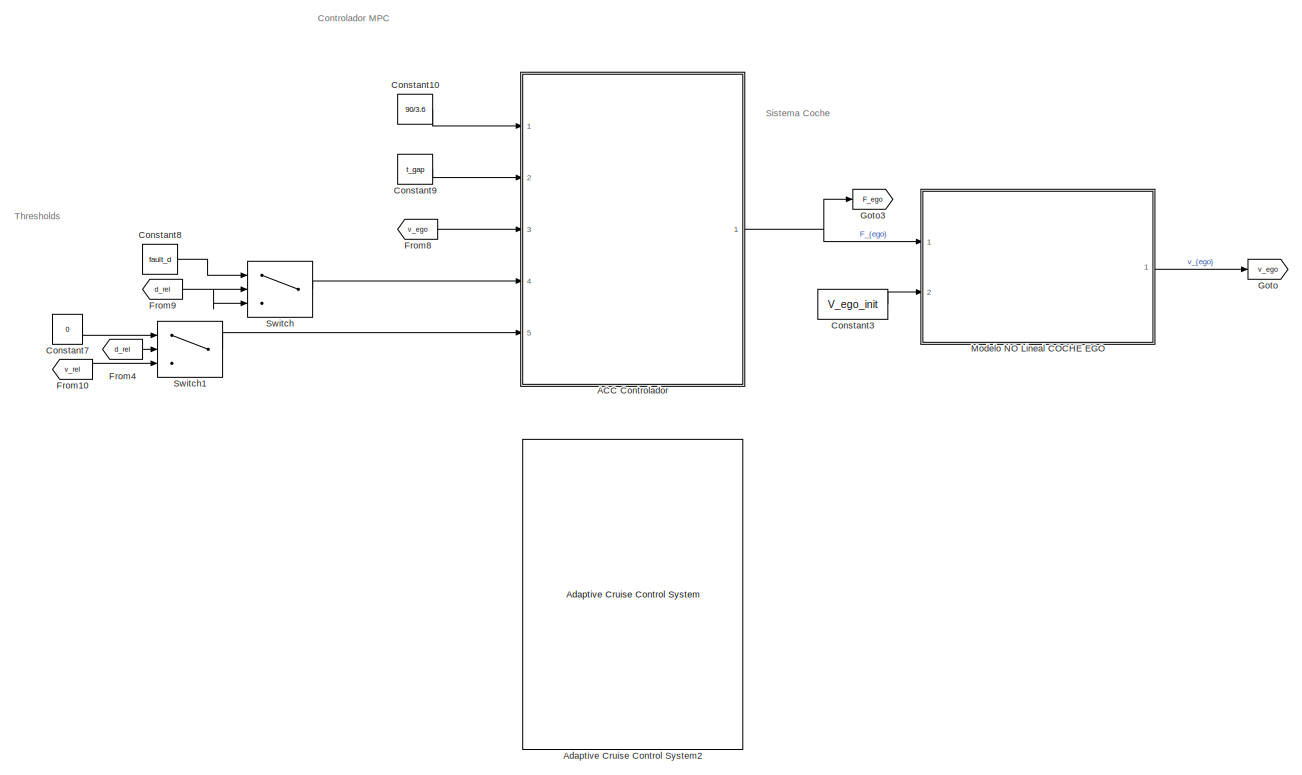
[diagram: root canvas - part 1/2, right side, full height]
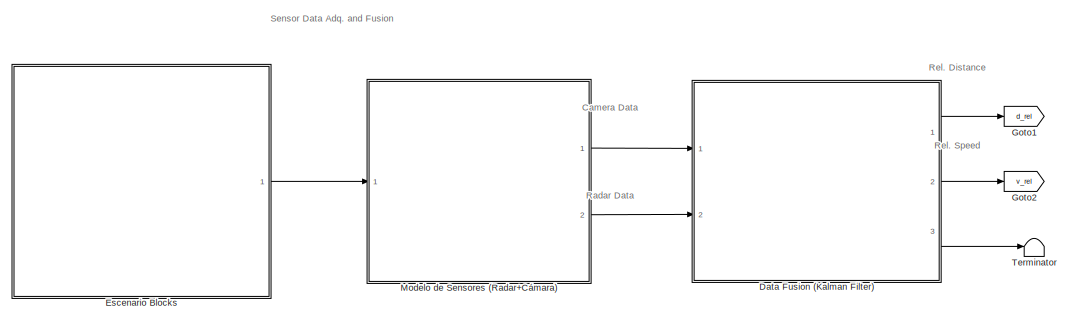
[diagram: root canvas - part 2/2, middle left region]
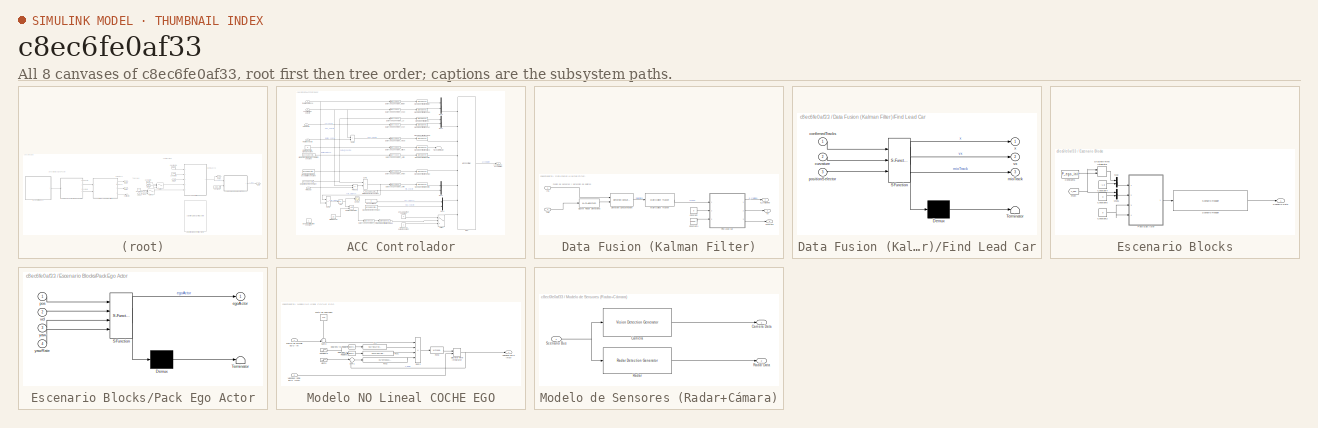
[diagram: thumbnail index - all 8 canvases of the model, root first then tree order]
MODEL slx_c8ec6fe0af33
KIND model
CONFIG AbsTol = auto
CONFIG EnableMultiTasking = off
CONFIG FixedStep = auto
CONFIG MaxStep = auto
CONFIG MinStep = auto
CONFIG RelTol = 1e-3
CONFIG SampleTimeConstraint = Unconstrained
CONFIG Solver = FixedStepDiscrete
CONFIG SolverName = FixedStepDiscrete
CONFIG StartTime = 0.0
CONFIG StopTime = 45
WORKSPACE source: mxarray member
WORKSPACE firstWarning = 1
WORKSPACE originalScenarioChecksum = '158070AB835E3E5B039703679FDCB6FF'
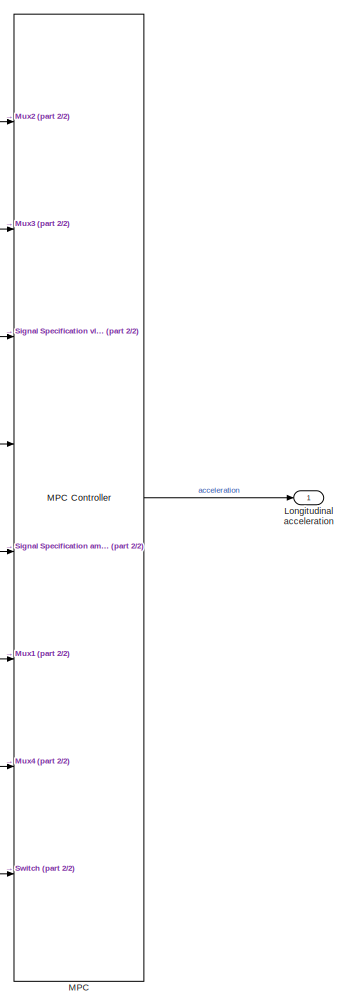
[diagram: ACC Controlador - part 1/2, right side, full height]
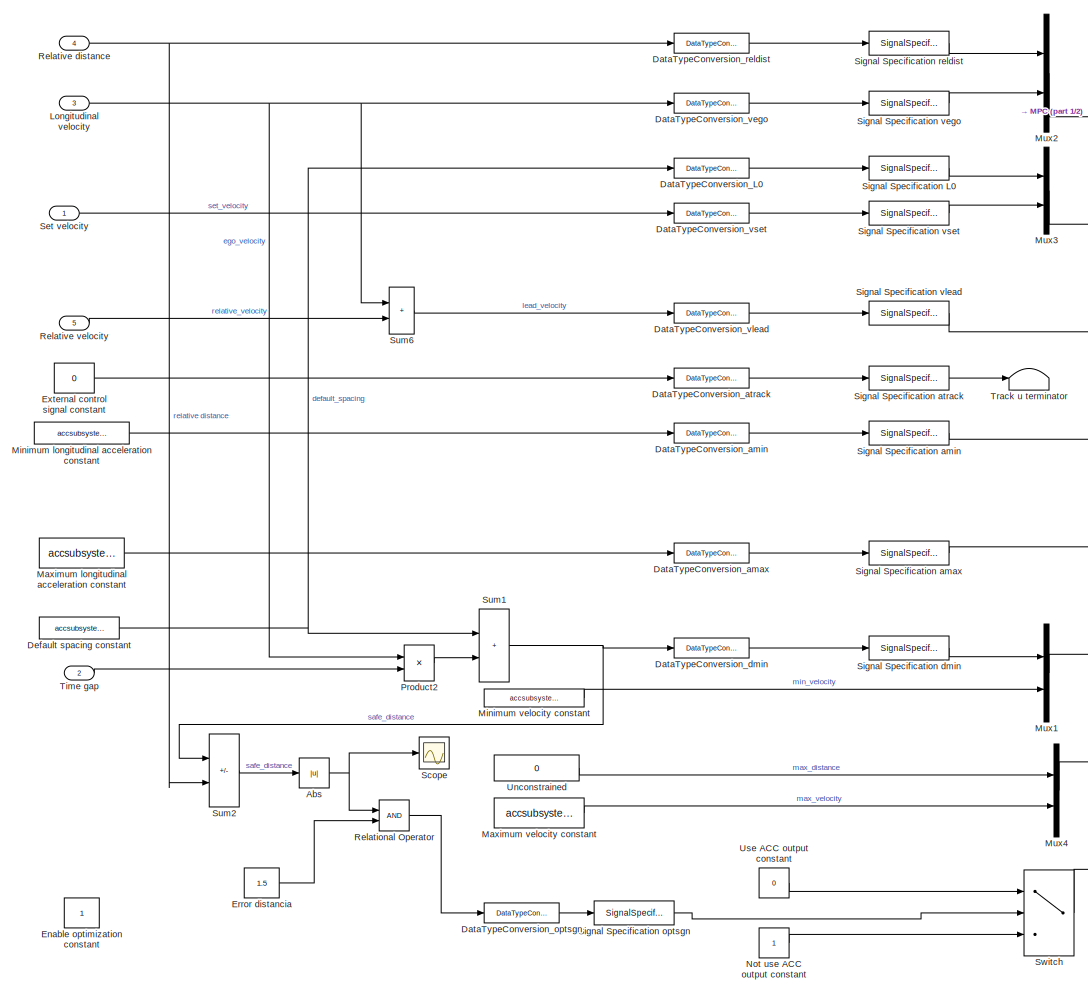
[diagram: ACC Controlador - part 2/2, center side, full height]
BLOCK [SubSystem] ACC Controlador
  Ports = [5, 1]
  RequestExecContextInheritance = off
BLOCK [Abs] ACC Controlador/Abs
  SaturateOnIntegerOverflow = off
BLOCK [DataTypeConversion] ACC Controlador/DataTypeConversion_L0
  OutDataTypeStr = accsubsystem_data.DataType
  RndMeth = Floor
  SaturateOnIntegerOverflow = off
BLOCK [DataTypeConversion] ACC Controlador/DataTypeConversion_amax
  OutDataTypeStr = accsubsystem_data.DataType
  RndMeth = Floor
  SaturateOnIntegerOverflow = off
BLOCK [DataTypeConversion] ACC Controlador/DataTypeConversion_amin
  OutDataTypeStr = accsubsystem_data.DataType
  RndMeth = Floor
  SaturateOnIntegerOverflow = off
BLOCK [DataTypeConversion] ACC Controlador/DataTypeConversion_atrack
  OutDataTypeStr = accsubsystem_data.DataType
  RndMeth = Floor
  SaturateOnIntegerOverflow = off
BLOCK [DataTypeConversion] ACC Controlador/DataTypeConversion_dmin
  OutDataTypeStr = accsubsystem_data.DataType
  RndMeth = Floor
  SaturateOnIntegerOverflow = off
BLOCK [DataTypeConversion] ACC Controlador/DataTypeConversion_optsgn
  OutDataTypeStr = accsubsystem_data.DataType
  RndMeth = Floor
  SaturateOnIntegerOverflow = off
BLOCK [DataTypeConversion] ACC Controlador/DataTypeConversion_reldist
  OutDataTypeStr = accsubsystem_data.DataType
  RndMeth = Floor
  SaturateOnIntegerOverflow = off
BLOCK [DataTypeConversion] ACC Controlador/DataTypeConversion_vego
  OutDataTypeStr = accsubsystem_data.DataType
  RndMeth = Floor
  SaturateOnIntegerOverflow = off
BLOCK [DataTypeConversion] ACC Controlador/DataTypeConversion_vlead
  OutDataTypeStr = accsubsystem_data.DataType
  RndMeth = Floor
  SaturateOnIntegerOverflow = off
BLOCK [DataTypeConversion] ACC Controlador/DataTypeConversion_vset
  OutDataTypeStr = accsubsystem_data.DataType
  RndMeth = Floor
  SaturateOnIntegerOverflow = off
BLOCK [Constant] ACC Controlador/Default spacing constant
  OutDataTypeStr = accsubsystem_data.DataType
  Value = accsubsystem_data.DefaultSpacing
BLOCK [Constant] ACC Controlador/Enable optimization constant
  OutDataTypeStr = accsubsystem_data.DataType
BLOCK [Constant] ACC Controlador/Error distancia
  OutDataTypeStr = accsubsystem_data.DataType
  Value = 1.5
BLOCK [Constant] ACC Controlador/External control signal constant
  OutDataTypeStr = accsubsystem_data.DataType
  Value = 0
BLOCK [Outport] ACC Controlador/Longitudinal acceleration
  PortDimensions = 1
  SamplingMode = Sample based
  SignalType = real
  VectorParamsAs1DForOutWhenUnconnected = off
BLOCK [Inport] ACC Controlador/Longitudinal velocity
  Port = 3
BLOCK [Reference] ACC Controlador/MPC  REF=mpclib/MPC Controller  (lib defined in mdl_ae329e0e0455)
  Ports = [8, 1]
  SCDEnableBlockLinearizationSpecification = on
  SourceBlock = mpclib/MPC Controller
  SourceProductBaseCode = MP
  SourceType = MPC
BLOCK [Constant] ACC Controlador/Maximum longitudinal acceleration constant
  OutDataTypeStr = accsubsystem_data.DataType
  Value = accsubsystem_data.MaxAcceleration
BLOCK [Constant] ACC Controlador/Maximum velocity constant
  OutDataTypeStr = accsubsystem_data.DataType
  Value = accsubsystem_data.MaxVelocity
BLOCK [Constant] ACC Controlador/Minimum longitudinal acceleration constant
  OutDataTypeStr = accsubsystem_data.DataType
  Value = accsubsystem_data.MinAcceleration
BLOCK [Constant] ACC Controlador/Minimum velocity constant
  OutDataTypeStr = accsubsystem_data.DataType
  Value = accsubsystem_data.MinVelocity
BLOCK [Mux] ACC Controlador/Mux1
  DisplayOption = bar
  Inputs = [1 1]
  Ports = [2, 1]
BLOCK [Mux] ACC Controlador/Mux2
  DisplayOption = bar
  Inputs = [1 1]
  Ports = [2, 1]
BLOCK [Mux] ACC Controlador/Mux3
  DisplayOption = bar
  Inputs = [1 1]
  Ports = [2, 1]
BLOCK [Mux] ACC Controlador/Mux4
  DisplayOption = bar
  Inputs = [1 1]
  Ports = [2, 1]
BLOCK [Constant] ACC Controlador/Not use ACC output constant
  OutDataTypeStr = accsubsystem_data.DataType
BLOCK [Product] ACC Controlador/Product2
  Ports = [2, 1]
BLOCK [RelationalOperator] ACC Controlador/Relational Operator
  InputSameDT = off
  OutDataTypeStr = boolean
  Ports = [2, 1]
  RndMeth = Simplest
BLOCK [Inport] ACC Controlador/Relative distance
  Port = 4
BLOCK [Inport] ACC Controlador/Relative velocity
  Port = 5
BLOCK [Scope] ACC Controlador/Scope
  Floating = off
  NumInputPorts = 1
  Ports = [1]
  ScopeSpecificationString = Simulink.scopes.TimeScopeBlockCfg('CurrentConfiguration', extmgr.ConfigurationSet(extmgr.Configuration('Core','General UI',true),extmgr.Configuration('Core','Source UI',true),extmgr.Configuration('Sources','WiredSimulink',true,'DataLoggingVariableName','ScopeData1'),extmgr.Configuration('Visuals','Time Domain',true,'SerializedDisplays',{struct('MinYLimReal','-3.90036','MaxYLimReal','35.13271','YLa...<+1421ch>
BLOCK [Inport] ACC Controlador/Set velocity
BLOCK [SignalSpecification] ACC Controlador/Signal Specification L0
  Dimensions = 1
BLOCK [SignalSpecification] ACC Controlador/Signal Specification amax
  Dimensions = 1
BLOCK [SignalSpecification] ACC Controlador/Signal Specification amin
  Dimensions = 1
BLOCK [SignalSpecification] ACC Controlador/Signal Specification atrack
  Dimensions = 1
BLOCK [SignalSpecification] ACC Controlador/Signal Specification dmin
  Dimensions = 1
BLOCK [SignalSpecification] ACC Controlador/Signal Specification optsgn
  Dimensions = 1
BLOCK [SignalSpecification] ACC Controlador/Signal Specification reldist
  Dimensions = 1
BLOCK [SignalSpecification] ACC Controlador/Signal Specification vego
  Dimensions = 1
BLOCK [SignalSpecification] ACC Controlador/Signal Specification vlead
  Dimensions = 1
BLOCK [SignalSpecification] ACC Controlador/Signal Specification vset
  Dimensions = 1
BLOCK [Sum] ACC Controlador/Sum1
  IconShape = rectangular
  Ports = [2, 1]
BLOCK [Sum] ACC Controlador/Sum2
  IconShape = rectangular
  Inputs = +-
  Ports = [2, 1]
BLOCK [Sum] ACC Controlador/Sum6
  IconShape = rectangular
  Ports = [2, 1]
BLOCK [Switch] ACC Controlador/Switch
  Criteria = u2 ~= 0
  InputSameDT = off
  SaturateOnIntegerOverflow = off
BLOCK [Inport] ACC Controlador/Time gap
  Port = 2
BLOCK [Terminator] ACC Controlador/Track u terminator
BLOCK [Constant] ACC Controlador/Unconstrained
  OutDataTypeStr = accsubsystem_data.DataType
  Value = 0
BLOCK [Constant] ACC Controlador/Use ACC output constant
  OutDataTypeStr = accsubsystem_data.DataType
  Value = 0
BLOCK [Reference] Adaptive Cruise Control System2  REF=mpcadaslib/Adaptive Cruise Control System
  Commented = on
  Ports = [5, 1]
  SourceBlock = mpcadaslib/Adaptive Cruise Control System
  SourceProductBaseCode = MP
  SourceType = Adaptive cruise control (ACC) system
BLOCK [Constant] Constant10
  Value = 90/3.6
BLOCK [Constant] Constant3
  Value = V_ego_init
BLOCK [Constant] Constant7
  Value = 0
BLOCK [Constant] Constant8
  Value = fault_d
BLOCK [Constant] Constant9
  Value = t_gap
BLOCK [SubSystem] Data Fusion (Kalman Filter)
  Ports = [2, 3]
  RequestExecContextInheritance = off
BLOCK [MATLABSystem] Data Fusion (Kalman Filter)/Cluster Radar Detections
  BusName = BusClusterDetections
  BusNameSource = Auto
  ClusterSize = 5
  MaskDisplay = disp(['Detection' char(10) 'Clustering']);\nport_label('input',1,'In');\nport_label('output',1,'Out');
  MaskType = helperClusterDetections
  Ports = [1, 1]
  SimulateUsing = Interpreted execution
  System = helperClusterDetections
BLOCK [Constant] Data Fusion (Kalman Filter)/Constant
  Value = 0
BLOCK [Constant] Data Fusion (Kalman Filter)/Constant1
  Value = [1 0 0 0 0 0; 0 0 1 0 0 0]
BLOCK [Reference] Data Fusion (Kalman Filter)/Detection Concatenation  REF=drivinglib/Detection Concatenation
  Ports = [2, 1]
  SourceBlock = drivinglib/Detection Concatenation
  SourceProductBaseCode = DR
  SourceType = driving.internal.DetectionConcatenation
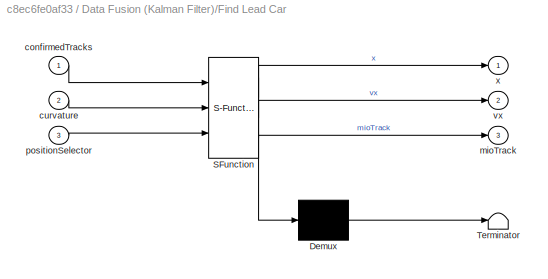
BLOCK [SubSystem] Data Fusion (Kalman Filter)/Find Lead Car
  ErrorFcn = Stateflow.Translate.translate
  PermitHierarchicalResolution = ExplicitOnly
  Ports = [3, 3]
  RequestExecContextInheritance = off
  SFBlockType = MATLAB Function
  TreatAsAtomicUnit = on
BLOCK [Demux] Data Fusion (Kalman Filter)/Find Lead Car/ Demux 
  Outputs = 1
  Ports = [1, 1]
BLOCK [S-Function] Data Fusion (Kalman Filter)/Find Lead Car/ SFunction 
  EnableBusSupport = on
  FunctionName = sf_sfun
  PortCounts = [3 4]
  Ports = [3, 4]
  SFcnIsStateOwnerBlock = off
  SFunctionDeploymentMode = off
  Tag = Stateflow S-Function 1
BLOCK [Terminator] Data Fusion (Kalman Filter)/Find Lead Car/ Terminator 
BLOCK [Inport] Data Fusion (Kalman Filter)/Find Lead Car/confirmedTracks
BLOCK [Inport] Data Fusion (Kalman Filter)/Find Lead Car/curvature
  Port = 2
BLOCK [Outport] Data Fusion (Kalman Filter)/Find Lead Car/mioTrack
  Port = 3
  VectorParamsAs1DForOutWhenUnconnected = off
BLOCK [Inport] Data Fusion (Kalman Filter)/Find Lead Car/positionSelector
  Port = 3
BLOCK [Outport] Data Fusion (Kalman Filter)/Find Lead Car/vx
  Port = 2
  VectorParamsAs1DForOutWhenUnconnected = off
BLOCK [Outport] Data Fusion (Kalman Filter)/Find Lead Car/x
  VectorParamsAs1DForOutWhenUnconnected = off
BLOCK [Inport] Data Fusion (Kalman Filter)/In1
BLOCK [Inport] Data Fusion (Kalman Filter)/In2
  Port = 2
BLOCK [Reference] Data Fusion (Kalman Filter)/Multi-Object Tracker  REF=drivinglib/Multi-Object Tracker
  Ports = [1, 1]
  SourceBlock = drivinglib/Multi-Object Tracker
  SourceProductBaseCode = DR
  SourceType = multiObjectTracker
BLOCK [Outport] Data Fusion (Kalman Filter)/d_{relative}
BLOCK [Outport] Data Fusion (Kalman Filter)/mioTrack
  Port = 3
BLOCK [Outport] Data Fusion (Kalman Filter)/vx
  Port = 2
BLOCK [SubSystem] Escenario Blocks
  Ports = [0, 1]
  RequestExecContextInheritance = off
BLOCK [Constant] Escenario Blocks/Constant2
  Value = 0
BLOCK [Constant] Escenario Blocks/Constant4
  Value = -1.8
BLOCK [Constant] Escenario Blocks/Constant5
  Value = 0
BLOCK [Constant] Escenario Blocks/Constant6
  Value = P_ego_init
BLOCK [DiscreteIntegrator] Escenario Blocks/Discrete-Time Integrator
  ICPrevOutput = DiscIntNeverNeededParam
  ICPrevScaledInput = DiscIntNeverNeededParam
  InitialCondition = 5
  InitialConditionSetting = Auto
  InitialConditionSource = external
  Ports = [2, 1]
  SampleTime = -1
BLOCK [From] Escenario Blocks/From
  GotoTag = v_ego
  TagVisibility = global
BLOCK [Mux] Escenario Blocks/Mux
  DisplayOption = bar
  Inputs = 2
  Ports = [2, 1]
BLOCK [Mux] Escenario Blocks/Mux1
  DisplayOption = bar
  Inputs = 2
  Ports = [2, 1]
BLOCK [SubSystem] Escenario Blocks/Pack Ego Actor
  ErrorFcn = Stateflow.Translate.translate
  PermitHierarchicalResolution = ExplicitOnly
  Ports = [4, 1]
  RequestExecContextInheritance = off
  SFBlockType = MATLAB Function
  TreatAsAtomicUnit = on
BLOCK [Demux] Escenario Blocks/Pack Ego Actor/ Demux 
  Outputs = 1
  Ports = [1, 1]
BLOCK [S-Function] Escenario Blocks/Pack Ego Actor/ SFunction 
  EnableBusSupport = on
  FunctionName = sf_sfun
  PortCounts = [4 2]
  Ports = [4, 2]
  SFcnIsStateOwnerBlock = off
  SFunctionDeploymentMode = off
  Tag = Stateflow S-Function 5
BLOCK [Terminator] Escenario Blocks/Pack Ego Actor/ Terminator 
BLOCK [Outport] Escenario Blocks/Pack Ego Actor/egoActor
  VectorParamsAs1DForOutWhenUnconnected = off
BLOCK [Inport] Escenario Blocks/Pack Ego Actor/pos
BLOCK [Inport] Escenario Blocks/Pack Ego Actor/vel
  Port = 2
BLOCK [Inport] Escenario Blocks/Pack Ego Actor/yaw
  Port = 3
BLOCK [Inport] Escenario Blocks/Pack Ego Actor/yawRate
  Port = 4
BLOCK [Outport] Escenario Blocks/Scenario Data
BLOCK [Reference] Escenario Blocks/Scenario Reader  REF=drivingscenarioandsensors/Scenario Reader
  Ports = [1, 1]
  SourceBlock = drivingscenarioandsensors/Scenario Reader
  SourceProductBaseCode = DR
  SourceType = driving.scenario.internal.ScenarioReader
BLOCK [From] From10
  GotoTag = v_rel
BLOCK [From] From4
  GotoTag = d_rel
BLOCK [From] From8
  GotoTag = v_ego
  TagVisibility = global
BLOCK [From] From9
  GotoTag = d_rel
BLOCK [Goto] Goto
  GotoTag = v_ego
  TagVisibility = global
BLOCK [Goto] Goto1
  GotoTag = d_rel
BLOCK [Goto] Goto2
  GotoTag = v_rel
BLOCK [Goto] Goto3
  GotoTag = F_ego
  TagVisibility = global
BLOCK [SubSystem] Modelo NO Lineal COCHE EGO
  Ports = [2, 1]
  RequestExecContextInheritance = off
BLOCK [Reference] Modelo NO Lineal COCHE EGO/Degrees to Radians  REF=simulink_extras/Transformations/Degrees to
Radians
  Ports = [1, 1]
  SourceBlock = simulink_extras/Transformations/Degrees to\nRadians
  SourceProductBaseCode = SL
  SourceType = DegreesToRadians
BLOCK [Reference] Modelo NO Lineal COCHE EGO/Degrees to Radians1  REF=simulink_extras/Transformations/Degrees to
Radians
  Ports = [1, 1]
  SourceBlock = simulink_extras/Transformations/Degrees to\nRadians
  SourceProductBaseCode = SL
  SourceType = DegreesToRadians
BLOCK [DiscreteIntegrator] Modelo NO Lineal COCHE EGO/Discrete-Time Integrator
  ICPrevOutput = DiscIntNeverNeededParam
  ICPrevScaledInput = DiscIntNeverNeededParam
  InitialConditionSetting = Auto
  InitialConditionSource = external
  Ports = [2, 1]
  SampleTime = -1
BLOCK [Fcn] Modelo NO Lineal COCHE EGO/Fcn
  Expr = 9.81*masa*sin(u)
BLOCK [Fcn] Modelo NO Lineal COCHE EGO/Fcn1
  Expr = 0.015*9.81*masa*cos(u)
BLOCK [Fcn] Modelo NO Lineal COCHE EGO/Fcn2
  Expr = 0.5*densidadAire*Cd*frontalArea*(u)^2
BLOCK [Fcn] Modelo NO Lineal COCHE EGO/Fcn3
  Expr = u/masa
BLOCK [Inport] Modelo NO Lineal COCHE EGO/Fuerza de empuje EGO (N)
BLOCK [Constant] Modelo NO Lineal COCHE EGO/Punto de operación
  NameLocation = left
  Value = Fx0
BLOCK [Sum] Modelo NO Lineal COCHE EGO/Sum1
  Inputs = |++
  Ports = [2, 1]
BLOCK [Sum] Modelo NO Lineal COCHE EGO/Sum2
  IconShape = rectangular
  Inputs = +---
  Ports = [4, 1]
BLOCK [Sum] Modelo NO Lineal COCHE EGO/Sum3
  Inputs = ++|
  Ports = [2, 1]
BLOCK [Outport] Modelo NO Lineal COCHE EGO/Velocidad EGO (mps)
  VectorParamsAs1DForOutWhenUnconnected = off
BLOCK [Inport] Modelo NO Lineal COCHE EGO/Velocidad Inicial EGO (mps)
  Port = 2
BLOCK [Step] Modelo NO Lineal COCHE EGO/pendiente
  After = FV2
  Before = IV2
  SampleTime = 0
  Time = T2
BLOCK [Step] Modelo NO Lineal COCHE EGO/viento
  After = FV3
  Before = IV3
  SampleTime = 0
  Time = T3
BLOCK [SubSystem] Modelo de Sensores (Radar+Cámara)
  Ports = [1, 2]
  RequestExecContextInheritance = off
BLOCK [Reference] Modelo de Sensores (Radar+Cámara)/Camera  REF=drivingscenarioandsensors/Vision Detection Generator
  Ports = [1, 1]
  SourceBlock = drivingscenarioandsensors/Vision Detection Generator
  SourceProductBaseCode = DR
  SourceType = visionDetectionGenerator
BLOCK [Outport] Modelo de Sensores (Radar+Cámara)/Camera Data
BLOCK [Reference] Modelo de Sensores (Radar+Cámara)/Radar  REF=drivingscenarioandsensors/Radar Detection Generator
  Ports = [1, 1]
  SourceBlock = drivingscenarioandsensors/Radar Detection Generator
  SourceProductBaseCode = DR
  SourceType = radarDetectionGenerator
BLOCK [Outport] Modelo de Sensores (Radar+Cámara)/Radar Data
  Port = 2
BLOCK [Inport] Modelo de Sensores (Radar+Cámara)/Scenario Bus
BLOCK [Switch] Switch
  Criteria = u2 > Threshold
  InputSameDT = off
  SaturateOnIntegerOverflow = off
  Threshold = 200
BLOCK [Switch] Switch1
  Criteria = u2 > Threshold
  InputSameDT = off
  SaturateOnIntegerOverflow = off
  Threshold = 200
BLOCK [Terminator] Terminator
ANNOTATION (root): Camera Data
ANNOTATION (root): Radar Data
ANNOTATION (root): Rel. Distance
ANNOTATION (root): Rel. Speed
ANNOTATION (root): Controlador MPC
ANNOTATION (root): Sensor Data Adq. and Fusion
ANNOTATION (root): Sistema Coche
ANNOTATION (root): Thresholds
ANNOTATION Data Fusion (Kalman Filter): Fusión de sensores y detección de objetos
NET ACC Controlador/Abs:1 -> ACC Controlador/Relational Operator:1, ACC Controlador/Scope:1
LINE ACC Controlador/DataTypeConversion_L0:1 -> ACC Controlador/Signal Specification L0:1
LINE ACC Controlador/DataTypeConversion_amax:1 -> ACC Controlador/Signal Specification amax:1
LINE ACC Controlador/DataTypeConversion_amin:1 -> ACC Controlador/Signal Specification amin:1
LINE ACC Controlador/DataTypeConversion_atrack:1 -> ACC Controlador/Signal Specification atrack:1
LINE ACC Controlador/DataTypeConversion_dmin:1 -> ACC Controlador/Signal Specification dmin:1
LINE ACC Controlador/DataTypeConversion_optsgn:1 -> ACC Controlador/Signal Specification optsgn:1
LINE ACC Controlador/DataTypeConversion_reldist:1 -> ACC Controlador/Signal Specification reldist:1
LINE ACC Controlador/DataTypeConversion_vego:1 -> ACC Controlador/Signal Specification vego:1
LINE ACC Controlador/DataTypeConversion_vlead:1 -> ACC Controlador/Signal Specification vlead:1
LINE ACC Controlador/DataTypeConversion_vset:1 -> ACC Controlador/Signal Specification vset:1
NET ACC Controlador/Default spacing constant:1 -> ACC Controlador/DataTypeConversion_L0:1, ACC Controlador/Sum1:1
LINE ACC Controlador/Error distancia:1 -> ACC Controlador/Relational Operator:2
LINE ACC Controlador/External control signal constant:1 -> ACC Controlador/DataTypeConversion_atrack:1
NET ACC Controlador/Longitudinal velocity:1 -> ACC Controlador/DataTypeConversion_vego:1, ACC Controlador/Product2:1, ACC Controlador/Sum6:1
LINE ACC Controlador/MPC:1 -> ACC Controlador/Longitudinal acceleration:1
LINE ACC Controlador/Maximum longitudinal acceleration constant:1 -> ACC Controlador/DataTypeConversion_amax:1
LINE ACC Controlador/Maximum velocity constant:1 -> ACC Controlador/Mux4:2
LINE ACC Controlador/Minimum longitudinal acceleration constant:1 -> ACC Controlador/DataTypeConversion_amin:1
LINE ACC Controlador/Minimum velocity constant:1 -> ACC Controlador/Mux1:2
LINE ACC Controlador/Mux1:1 -> ACC Controlador/MPC:6
LINE ACC Controlador/Mux2:1 -> ACC Controlador/MPC:1
LINE ACC Controlador/Mux3:1 -> ACC Controlador/MPC:2
LINE ACC Controlador/Mux4:1 -> ACC Controlador/MPC:7
LINE ACC Controlador/Not use ACC output constant:1 -> ACC Controlador/Switch:3
LINE ACC Controlador/Product2:1 -> ACC Controlador/Sum1:2
LINE ACC Controlador/Relational Operator:1 -> ACC Controlador/DataTypeConversion_optsgn:1
NET ACC Controlador/Relative distance:1 -> ACC Controlador/DataTypeConversion_reldist:1, ACC Controlador/Sum2:2
LINE ACC Controlador/Relative velocity:1 -> ACC Controlador/Sum6:2
LINE ACC Controlador/Set velocity:1 -> ACC Controlador/DataTypeConversion_vset:1
LINE ACC Controlador/Signal Specification L0:1 -> ACC Controlador/Mux3:1
LINE ACC Controlador/Signal Specification amax:1 -> ACC Controlador/MPC:5
LINE ACC Controlador/Signal Specification amin:1 -> ACC Controlador/MPC:4
LINE ACC Controlador/Signal Specification atrack:1 -> ACC Controlador/Track u terminator:1
LINE ACC Controlador/Signal Specification dmin:1 -> ACC Controlador/Mux1:1
LINE ACC Controlador/Signal Specification optsgn:1 -> ACC Controlador/Switch:2
LINE ACC Controlador/Signal Specification reldist:1 -> ACC Controlador/Mux2:1
LINE ACC Controlador/Signal Specification vego:1 -> ACC Controlador/Mux2:2
LINE ACC Controlador/Signal Specification vlead:1 -> ACC Controlador/MPC:3
LINE ACC Controlador/Signal Specification vset:1 -> ACC Controlador/Mux3:2
NET ACC Controlador/Sum1:1 -> ACC Controlador/DataTypeConversion_dmin:1, ACC Controlador/Sum2:1
LINE ACC Controlador/Sum2:1 -> ACC Controlador/Abs:1
LINE ACC Controlador/Sum6:1 -> ACC Controlador/DataTypeConversion_vlead:1
LINE ACC Controlador/Switch:1 -> ACC Controlador/MPC:8
LINE ACC Controlador/Time gap:1 -> ACC Controlador/Product2:2
LINE ACC Controlador/Unconstrained:1 -> ACC Controlador/Mux4:1
LINE ACC Controlador/Use ACC output constant:1 -> ACC Controlador/Switch:1
NET ACC Controlador:1 -> Goto3:1, Modelo NO Lineal COCHE EGO:1
LINE Constant10:1 -> ACC Controlador:1
LINE Constant3:1 -> Modelo NO Lineal COCHE EGO:2
LINE Constant7:1 -> Switch1:1
LINE Constant8:1 -> Switch:1
LINE Constant9:1 -> ACC Controlador:2
LINE Data Fusion (Kalman Filter)/Cluster Radar Detections:1 -> Data Fusion (Kalman Filter)/Detection Concatenation:2
LINE Data Fusion (Kalman Filter)/Constant1:1 -> Data Fusion (Kalman Filter)/Find Lead Car:3
LINE Data Fusion (Kalman Filter)/Constant:1 -> Data Fusion (Kalman Filter)/Find Lead Car:2
LINE Data Fusion (Kalman Filter)/Detection Concatenation:1 -> Data Fusion (Kalman Filter)/Multi-Object Tracker:1
LINE Data Fusion (Kalman Filter)/Find Lead Car:1 -> Data Fusion (Kalman Filter)/d_{relative}:1
LINE Data Fusion (Kalman Filter)/Find Lead Car:2 -> Data Fusion (Kalman Filter)/vx:1
LINE Data Fusion (Kalman Filter)/Find Lead Car:3 -> Data Fusion (Kalman Filter)/mioTrack:1
LINE Data Fusion (Kalman Filter)/In1:1 -> Data Fusion (Kalman Filter)/Detection Concatenation:1
LINE Data Fusion (Kalman Filter)/In2:1 -> Data Fusion (Kalman Filter)/Cluster Radar Detections:1
LINE Data Fusion (Kalman Filter)/Multi-Object Tracker:1 -> Data Fusion (Kalman Filter)/Find Lead Car:1
LINE Data Fusion (Kalman Filter):1 -> Goto1:1
LINE Data Fusion (Kalman Filter):2 -> Goto2:1
LINE Data Fusion (Kalman Filter):3 -> Terminator:1
NET Escenario Blocks/Constant2:1 -> Escenario Blocks/Pack Ego Actor:3, Escenario Blocks/Pack Ego Actor:4
LINE Escenario Blocks/Constant4:1 -> Escenario Blocks/Mux:2
LINE Escenario Blocks/Constant5:1 -> Escenario Blocks/Mux1:2
LINE Escenario Blocks/Constant6:1 -> Escenario Blocks/Discrete-Time Integrator:2
LINE Escenario Blocks/Discrete-Time Integrator:1 -> Escenario Blocks/Mux:1
NET Escenario Blocks/From:1 -> Escenario Blocks/Discrete-Time Integrator:1, Escenario Blocks/Mux1:1
LINE Escenario Blocks/Mux1:1 -> Escenario Blocks/Pack Ego Actor:2
LINE Escenario Blocks/Mux:1 -> Escenario Blocks/Pack Ego Actor:1
LINE Escenario Blocks/Pack Ego Actor:1 -> Escenario Blocks/Scenario Reader:1
LINE Escenario Blocks/Scenario Reader:1 -> Escenario Blocks/Scenario Data:1
LINE Escenario Blocks:1 -> Modelo de Sensores (Radar+Cámara):1
LINE From10:1 -> Switch1:3
LINE From4:1 -> Switch1:2
LINE From8:1 -> ACC Controlador:3
NET From9:1 -> Switch:2, Switch:3
LINE Modelo NO Lineal COCHE EGO/Degrees to Radians1:1 -> Modelo NO Lineal COCHE EGO/Fcn1:1
LINE Modelo NO Lineal COCHE EGO/Degrees to Radians:1 -> Modelo NO Lineal COCHE EGO/Fcn:1
NET Modelo NO Lineal COCHE EGO/Discrete-Time Integrator:1 -> Modelo NO Lineal COCHE EGO/Sum1:2, Modelo NO Lineal COCHE EGO/Velocidad EGO (mps):1
LINE Modelo NO Lineal COCHE EGO/Fcn1:1 -> Modelo NO Lineal COCHE EGO/Sum2:3
LINE Modelo NO Lineal COCHE EGO/Fcn2:1 -> Modelo NO Lineal COCHE EGO/Sum2:4
LINE Modelo NO Lineal COCHE EGO/Fcn3:1 -> Modelo NO Lineal COCHE EGO/Discrete-Time Integrator:1
LINE Modelo NO Lineal COCHE EGO/Fcn:1 -> Modelo NO Lineal COCHE EGO/Sum2:2
LINE Modelo NO Lineal COCHE EGO/Fuerza de empuje EGO (N):1 -> Modelo NO Lineal COCHE EGO/Sum3:2
LINE Modelo NO Lineal COCHE EGO/Punto de operación:1 -> Modelo NO Lineal COCHE EGO/Sum3:1
LINE Modelo NO Lineal COCHE EGO/Sum1:1 -> Modelo NO Lineal COCHE EGO/Fcn2:1
LINE Modelo NO Lineal COCHE EGO/Sum2:1 -> Modelo NO Lineal COCHE EGO/Fcn3:1
LINE Modelo NO Lineal COCHE EGO/Sum3:1 -> Modelo NO Lineal COCHE EGO/Sum2:1
LINE Modelo NO Lineal COCHE EGO/Velocidad Inicial EGO (mps):1 -> Modelo NO Lineal COCHE EGO/Discrete-Time Integrator:2
NET Modelo NO Lineal COCHE EGO/pendiente:1 -> Modelo NO Lineal COCHE EGO/Degrees to Radians1:1, Modelo NO Lineal COCHE EGO/Degrees to Radians:1
LINE Modelo NO Lineal COCHE EGO/viento:1 -> Modelo NO Lineal COCHE EGO/Sum1:1
LINE Modelo NO Lineal COCHE EGO:1 -> Goto:1
LINE Modelo de Sensores (Radar+Cámara)/Camera:1 -> Modelo de Sensores (Radar+Cámara)/Camera Data:1
LINE Modelo de Sensores (Radar+Cámara)/Radar:1 -> Modelo de Sensores (Radar+Cámara)/Radar Data:1
NET Modelo de Sensores (Radar+Cámara)/Scenario Bus:1 -> Modelo de Sensores (Radar+Cámara)/Camera:1, Modelo de Sensores (Radar+Cámara)/Radar:1
LINE Modelo de Sensores (Radar+Cámara):1 -> Data Fusion (Kalman Filter):1
LINE Modelo de Sensores (Radar+Cámara):2 -> Data Fusion (Kalman Filter):2
LINE Switch1:1 -> ACC Controlador:5
LINE Switch:1 -> ACC Controlador:4
note: NET lines group one-source signal fan-out (src -> all destinations, sorted); 1:1 wires keep LINE
CHART Data Fusion (Kalman Filter)/Find Lead Car states=1 transitions=1
  STATE_LABEL 'eML_blk_kernel()'
  STATE_LABEL "SCRIPT:\nfunction [x,vx,mioTrack] = findLeadCar(confirmedTracks, curvature, positionSelector)\n% This function finds the lead car: a car in front of the ego car that\n% satisfies all the criteria below:\n% * Within the ego car's lane.\n% * In front of the ego car.\n% * Closest to the ego car.\n\n% Important notes:\n% 1. If you change state definition, change the following:\n%       State = [x;vx;y;vy;z;vz] ...<+1713ch>"
CHART Escenario Blocks/Pack Ego Actor states=1 transitions=1
  STATE_LABEL 'eML_blk_kernel()'
  STATE_LABEL "SCRIPT:\nfunction egoActor = packEgo(pos,vel,yaw,yawRate)\n% Pack ego information into a single ego actor bus\n%\n% Imoprtant note:\n% Output is a bus of type BusActorsActors. This is the same bus used by the\n% Scenario Reader to output an individual actor. If you change the\n% output bus name of Scenario Reader, change the output bus name here\n% as well by clicking on 'Edit Data' in the menu above.\n\neg...<+215ch>"
CHART  states=0 transitions=0
CHART  states=0 transitions=0
